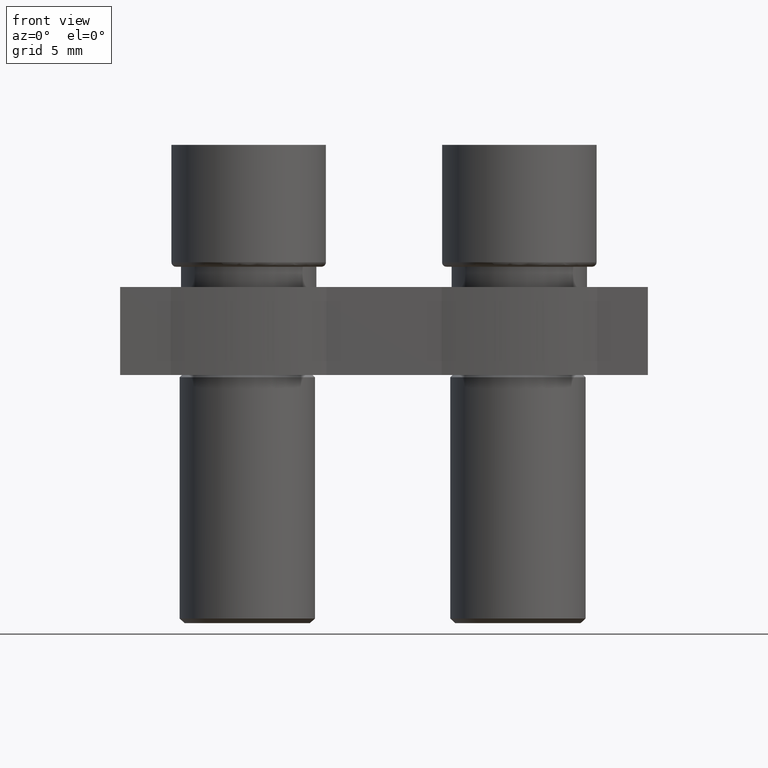
[diagram: clean part render]
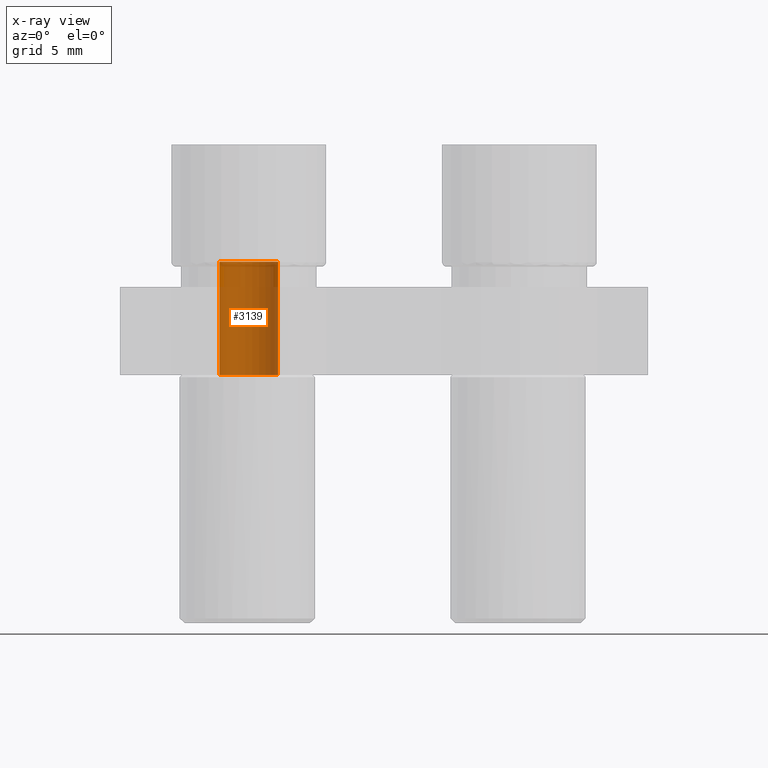
[diagram: x-ray — body ghosted, one internal face saturated and labeled with its STEP entity id]
A machine part, front view, then the same camera in x-ray: the body is ghosted and one INTERNAL B-rep face — a face not visible from any outside direction — is saturated and labeled: STEP entity #3139.
In plain terms, the highlighted cylindrical surface (edge-blend (fillet) strip) has radius 1.3 mm, axis along (0, 0, -1).
Its self-contained STEP definition (entity closure, byte-faithful):
#472 = CARTESIAN_POINT ( 'NONE',  ( 1.300000000000000500, 1.592040838891559800E-016, -18.28430778516076700 ) ) ;
#474 = DIRECTION ( 'NONE',  ( -0.0000000000000000000, -0.0000000000000000000, 1.000000000000000000 ) ) ;
#475 = DIRECTION ( 'NONE',  ( -1.000000000000000000, 0.0000000000000000000, 0.0000000000000000000 ) ) ;
#482 = DIRECTION ( 'NONE',  ( 0.0000000000000000000, 0.0000000000000000000, -1.000000000000000000 ) ) ;
#487 = CARTESIAN_POINT ( 'NONE',  ( 0.0000000000000000000, 0.0000000000000000000, -4.800000000000002500 ) ) ;
#496 = CARTESIAN_POINT ( 'NONE',  ( -1.300000000000000500, 0.0000000000000000000, -18.28430778516076700 ) ) ;
#501 = LINE ( 'NONE', #472, #2573 ) ;
#512 = DIRECTION ( 'NONE',  ( 0.0000000000000000000, 0.0000000000000000000, -1.000000000000000000 ) ) ;
#514 = LINE ( 'NONE', #496, #2568 ) ;
#680 = DIRECTION ( 'NONE',  ( -1.000000000000000000, 0.0000000000000000000, 0.0000000000000000000 ) ) ;
#692 = CARTESIAN_POINT ( 'NONE',  ( 0.0000000000000000000, 0.0000000000000000000, 0.2156922148392366500 ) ) ;
#707 = DIRECTION ( 'NONE',  ( 0.0000000000000000000, 0.0000000000000000000, -1.000000000000000000 ) ) ;
#995 = CARTESIAN_POINT ( 'NONE',  ( 0.0000000000000000000, 0.0000000000000000000, -18.28430778516076700 ) ) ;
#1011 = FACE_OUTER_BOUND ( 'NONE', #1805, .T. ) ;
#1014 = CYLINDRICAL_SURFACE ( 'NONE', #2711, 1.300000000000000500 ) ;
#1016 = DIRECTION ( 'NONE',  ( 0.0000000000000000000, 0.0000000000000000000, -1.000000000000000000 ) ) ;
#1075 = DIRECTION ( 'NONE',  ( -1.000000000000000000, 0.0000000000000000000, 0.0000000000000000000 ) ) ;
#1659 = VERTEX_POINT ( 'NONE', #2386 ) ;
#1717 = VERTEX_POINT ( 'NONE', #2462 ) ;
#1723 = VERTEX_POINT ( 'NONE', #2440 ) ;
#1737 = VERTEX_POINT ( 'NONE', #2482 ) ;
#1805 = EDGE_LOOP ( 'NONE', ( #2199, #2197, #2179, #2180 ) ) ;
#2179 = ORIENTED_EDGE ( 'NONE', *, *, #3019, .T. ) ;
#2180 = ORIENTED_EDGE ( 'NONE', *, *, #3015, .F. ) ;
#2197 = ORIENTED_EDGE ( 'NONE', *, *, #3013, .T. ) ;
#2199 = ORIENTED_EDGE ( 'NONE', *, *, #3082, .T. ) ;
#2386 = CARTESIAN_POINT ( 'NONE',  ( 1.300000000000000500, 1.592040838891559800E-016, 0.2156922148392366500 ) ) ;
#2440 = CARTESIAN_POINT ( 'NONE',  ( -1.300000000000000500, 0.0000000000000000000, 0.2156922148392366500 ) ) ;
#2462 = CARTESIAN_POINT ( 'NONE',  ( -1.300000000000000500, 0.0000000000000000000, -4.800000000000002500 ) ) ;
#2482 = CARTESIAN_POINT ( 'NONE',  ( 1.300000000000000500, 1.592040838891559800E-016, -4.800000000000002500 ) ) ;
#2568 = VECTOR ( 'NONE', #512, 1000.000000000000000 ) ;
#2569 = CIRCLE ( 'NONE', #2574, 1.300000000000000500 ) ;
#2573 = VECTOR ( 'NONE', #482, 1000.000000000000000 ) ;
#2574 = AXIS2_PLACEMENT_3D ( 'NONE', #487, #474, #475 ) ;
#2711 = AXIS2_PLACEMENT_3D ( 'NONE', #995, #1016, #1075 ) ;
#2713 = CIRCLE ( 'NONE', #2727, 1.300000000000000500 ) ;
#2727 = AXIS2_PLACEMENT_3D ( 'NONE', #692, #707, #680 ) ;
#3013 = EDGE_CURVE ( 'NONE', #1659, #1737, #501, .T. ) ;
#3015 = EDGE_CURVE ( 'NONE', #1723, #1717, #514, .T. ) ;
#3019 = EDGE_CURVE ( 'NONE', #1737, #1717, #2569, .T. ) ;
#3082 = EDGE_CURVE ( 'NONE', #1723, #1659, #2713, .T. ) ;
#3139 = ADVANCED_FACE ( 'NONE', ( #1011 ), #1014, .T. ) ;